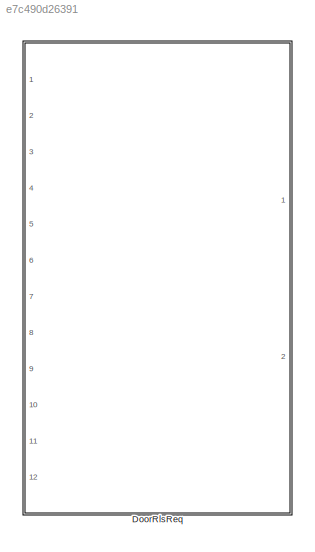
MODEL slx_e7c490d26391
KIND library
CONFIG AbsTol = auto
CONFIG EnableMultiTasking = off
CONFIG FixedStep = auto
CONFIG MaxStep = auto
CONFIG MinStep = auto
CONFIG RelTol = 1e-3
CONFIG SampleTimeConstraint = Unconstrained
CONFIG SolverName = VariableStepAuto
CONFIG StartTime = 0.0
CONFIG StopTime = 10.0
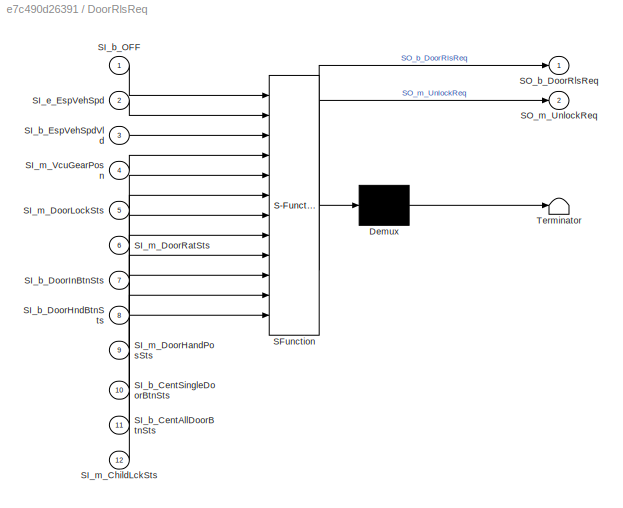
BLOCK [SubSystem] DoorRlsReq
  ErrorFcn = Stateflow.Translate.translate
  PermitHierarchicalResolution = ExplicitOnly
  Ports = [12, 2]
  RequestExecContextInheritance = off
  SFBlockType = Chart
  TreatAsAtomicUnit = on
BLOCK [Demux] DoorRlsReq/ Demux 
  Outputs = 1
  Ports = [1, 1]
BLOCK [S-Function] DoorRlsReq/ SFunction 
  EnableBusSupport = on
  FunctionName = sf_sfun
  PortCounts = [12 3]
  Ports = [12, 3]
  SFcnIsStateOwnerBlock = off
  SFunctionDeploymentMode = off
  Tag = Stateflow S-Function 5
BLOCK [Terminator] DoorRlsReq/ Terminator 
BLOCK [Inport] DoorRlsReq/SI_b_CentAllDoorBtnSts
  Port = 11
BLOCK [Inport] DoorRlsReq/SI_b_CentSingleDoorBtnSts
  Port = 10
BLOCK [Inport] DoorRlsReq/SI_b_DoorHndBtnSts
  Port = 8
BLOCK [Inport] DoorRlsReq/SI_b_DoorInBtnSts
  Port = 7
BLOCK [Inport] DoorRlsReq/SI_b_EspVehSpdVld
  Port = 3
BLOCK [Inport] DoorRlsReq/SI_b_OFF
BLOCK [Inport] DoorRlsReq/SI_e_EspVehSpd
  Port = 2
BLOCK [Inport] DoorRlsReq/SI_m_ChildLckSts
  Port = 12
BLOCK [Inport] DoorRlsReq/SI_m_DoorHandPosSts
  Port = 9
BLOCK [Inport] DoorRlsReq/SI_m_DoorLockSts
  Port = 5
BLOCK [Inport] DoorRlsReq/SI_m_DoorRatSts
  Port = 6
BLOCK [Inport] DoorRlsReq/SI_m_VcuGearPosn
  Port = 4
BLOCK [Outport] DoorRlsReq/SO_b_DoorRlsReq
BLOCK [Outport] DoorRlsReq/SO_m_UnlockReq
  Port = 2
CHART DoorRlsReq states=39 transitions=56
  STATE_LABEL 'DoorRlsReqHandle'
  STATE_LABEL 'Idle'
  STATE_LABEL 'Trig'
  STATE_LABEL '[SO_b_DoorRlsReq == 1]'
  STATE_LABEL '[after(5, tick)]\n{SO_b_DoorRlsReq = 0;}'
  STATE_LABEL 'Idle'
  STATE_LABEL 'Trig'
  STATE_LABEL 'DoorInBtn'
  STATE_LABEL 'SwValid'
  STATE_LABEL 'Idle\nen:\nSL_b_DoorInBtnValid = 0;'
  STATE_LABEL 'Once'
  STATE_LABEL 'Twice\nen:\nSL_b_DoorInBtnValid = 1;'
  STATE_LABEL '[hasChangedTo(SI_b_DoorInBtnSts, 1)]'
  STATE_LABEL '[after(20, tick) && ...\nhasChangedTo(SI_b_DoorInBtnSts, 1)]'
  STATE_LABEL '[after(200, tick)]'
  STATE_LABEL '[after(3, tick)]'
  STATE_LABEL 'RlsReq'
  STATE_LABEL 'Idle\n'
  STATE_LABEL 'Trigger'
  STATE_LABEL 'DoorLock'
  STATE_LABEL 'UnlockReq\nen:\n/* SO_m_UnlockReq = Unlock_Req;\non at(5, tick):\nSO_m_UnlockReq = Unlock_Idle; */\n'
  STATE_LABEL 'UnlockSuccess'
  STATE_LABEL 'UnlockFail'
  STATE_LABEL '[SI_m_DoorRatSts != Rat_Unlock]'
  STATE_LABEL '[after(50, tick) && ...\nSI_m_DoorLockSts == Door_Lock]'
  STATE_LABEL '[SI_m_DoorLockSts == Door_Unlock]'
  STATE_LABEL 'Release\nen:\nSO_b_DoorRlsReq = 1;\n'
  STATE_LABEL 'DoorUnlock'
  STATE_LABEL 'Error'
  STATE_LABEL '[SI_m_DoorLockSts == Door_Lock]'
  STATE_LABEL '[SI_m_DoorRatSts != Rat_Unlock]'
  STATE_LABEL '[SI_m_DoorLockSts == Door_Unlock]'
  STATE_LABEL '[SI_m_DoorRatSts != Rat_Unlock]'
  STATE_LABEL '[SI_m_DoorRatSts != Rat_Unlock]'
  STATE_LABEL '[(SI_e_EspVehSpd < 5 && SI_b_EspVehSpdVld == 0) && ...\nSI_m_ChildLckSts == Child_Unlock && ...\nhasChangedTo(SL_b_DoorInBtnValid, 1)]'
  STATE_LABEL '[(SI_e_EspVehSpd < 5 && SI_b_EspVehSpdVld == 0) && ...\nSI_m_ChildLckSts == Child_Unlock && ...\nSI_m_DoorLockSts == Door_Unlock && ...\nhasChangedTo(SI_b_DoorInBtnSts, 1)]'
  STATE_LABEL '[(SI_e_EspVehSpd >= 5 && SI_b_EspVehSpdVld == 0) || ...\nSI_m_ChildLckSts != Child_Unlock || ...\n(SI_m_DoorLockSts == Door_Unlock && ...\nSI_m_DoorRatSts == Rat_Unlock)]'
  STATE_LABEL 'SwValid'
  STATE_LABEL 'Idle\nen:\nSL_b_DoorInBtnValid = 0;'
  STATE_LABEL 'Once'
CHART  states=0 transitions=0
